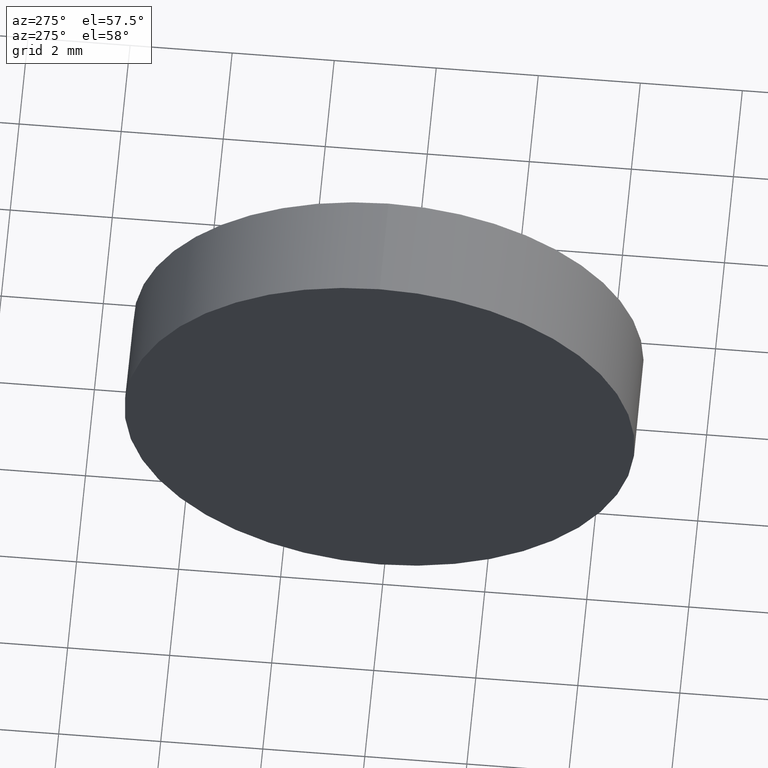
[diagram: clean part render]
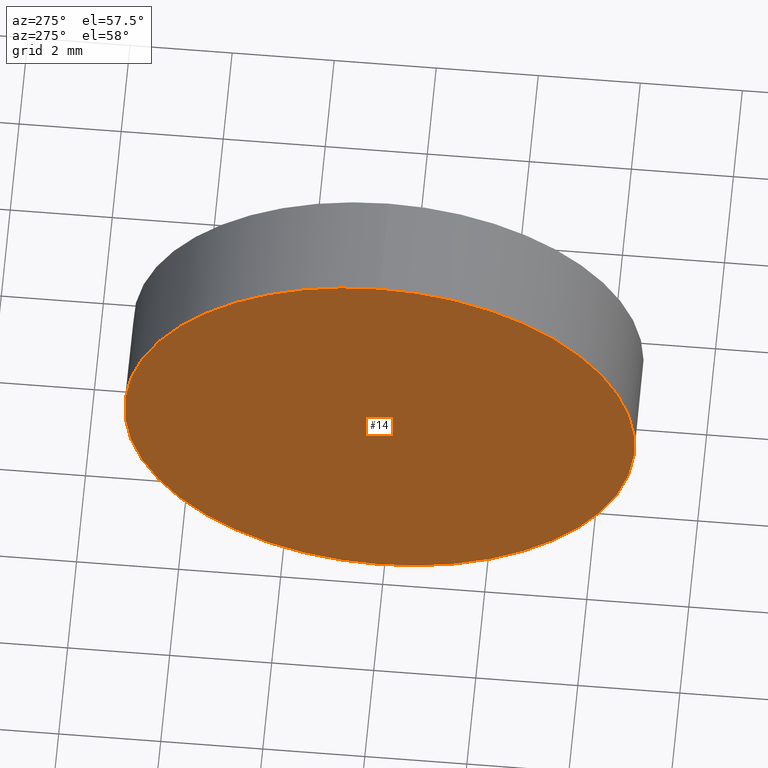
[diagram: same view with one face highlighted and labeled with its STEP entity id]
A machine part, auxiliary view. The second image highlights one B-rep face of the part: STEP entity #14.
In plain terms, the highlighted planar face has unit normal (1, 0, 0).
Its self-contained STEP definition (entity closure, byte-faithful):
#2 = DIRECTION ( 'NONE',  ( 0.0000000000000000000, 0.0000000000000000000, -1.000000000000000000 ) ) ;
#3 = EDGE_LOOP ( 'NONE', ( #177, #42 ) ) ;
#12 = AXIS2_PLACEMENT_3D ( 'NONE', #53, #56, #111 ) ;
#14 = ADVANCED_FACE ( 'NONE', ( #33 ), #128, .F. ) ;
#18 = AXIS2_PLACEMENT_3D ( 'NONE', #86, #169, #55 ) ;
#33 = FACE_OUTER_BOUND ( 'NONE', #3, .T. ) ;
#36 = VERTEX_POINT ( 'NONE', #164 ) ;
#40 = DIRECTION ( 'NONE',  ( 1.000000000000000000, 0.0000000000000000000, 0.0000000000000000000 ) ) ;
#42 = ORIENTED_EDGE ( 'NONE', *, *, #85, .T. ) ;
#46 = CIRCLE ( 'NONE', #18, 5.000000000000000900 ) ;
#53 = CARTESIAN_POINT ( 'NONE',  ( 44.31958549791029600, 26.08904114919495900, 0.0000000000000000000 ) ) ;
#55 = DIRECTION ( 'NONE',  ( 0.0000000000000000000, 0.0000000000000000000, 1.000000000000000000 ) ) ;
#56 = DIRECTION ( 'NONE',  ( -1.000000000000000000, -0.0000000000000000000, -0.0000000000000000000 ) ) ;
#57 = CIRCLE ( 'NONE', #12, 5.000000000000000900 ) ;
#85 = EDGE_CURVE ( 'NONE', #87, #36, #57, .T. ) ;
#86 = CARTESIAN_POINT ( 'NONE',  ( 44.31958549791029600, 26.08904114919495900, 0.0000000000000000000 ) ) ;
#87 = VERTEX_POINT ( 'NONE', #110 ) ;
#110 = CARTESIAN_POINT ( 'NONE',  ( 44.31958549791029600, 26.08904114919495900, -5.000000000000000900 ) ) ;
#111 = DIRECTION ( 'NONE',  ( 0.0000000000000000000, 0.0000000000000000000, 1.000000000000000000 ) ) ;
#128 = PLANE ( 'NONE',  #171 ) ;
#151 = EDGE_CURVE ( 'NONE', #36, #87, #46, .T. ) ;
#164 = CARTESIAN_POINT ( 'NONE',  ( 44.31958549791029600, 26.08904114919495900, 5.000000000000000900 ) ) ;
#165 = CARTESIAN_POINT ( 'NONE',  ( 44.31958549791029600, 26.08904114919495900, 0.0000000000000000000 ) ) ;
#169 = DIRECTION ( 'NONE',  ( -1.000000000000000000, -0.0000000000000000000, -0.0000000000000000000 ) ) ;
#171 = AXIS2_PLACEMENT_3D ( 'NONE', #165, #40, #2 ) ;
#177 = ORIENTED_EDGE ( 'NONE', *, *, #151, .T. ) ;